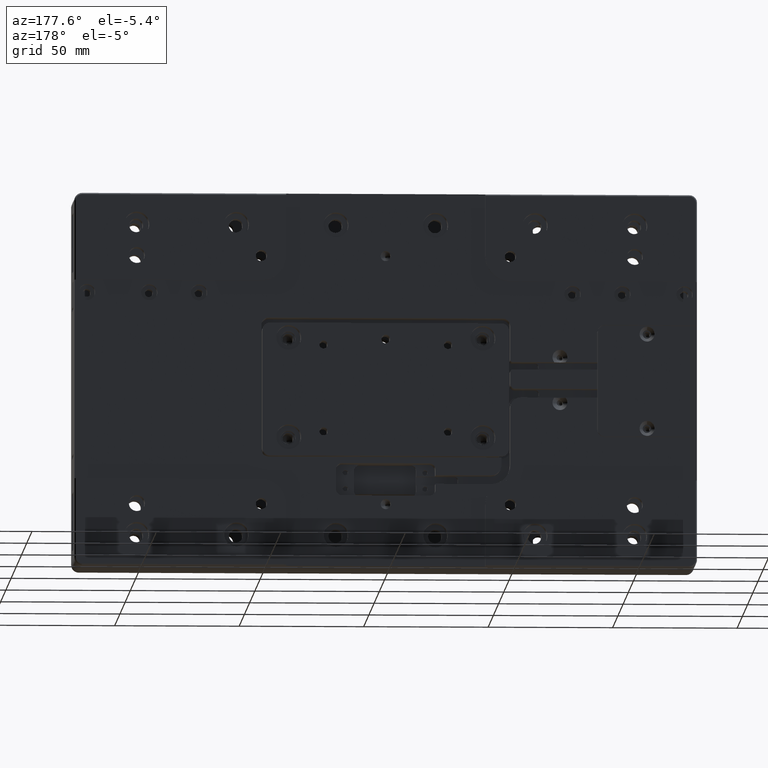
[diagram: clean part render]
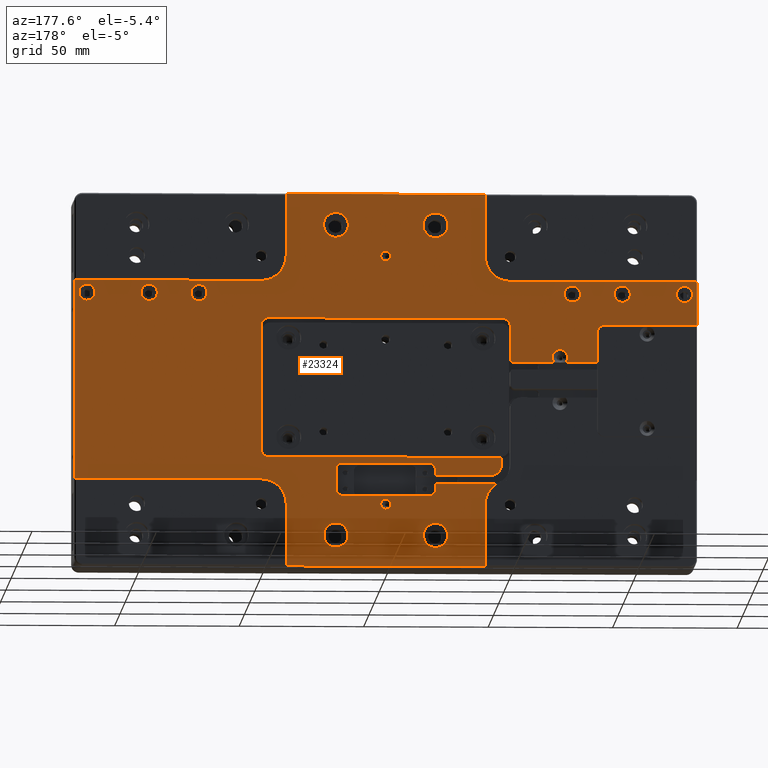
[diagram: same view with one face highlighted and labeled with its STEP entity id]
A machine part, auxiliary view. The second image highlights one B-rep face of the part: STEP entity #23324.
In plain terms, the highlighted planar face has unit normal (0, 1, 0).
Its self-contained STEP definition (entity closure, byte-faithful):
#62 = CARTESIAN_POINT ( 'NONE',  ( -125.0000000000000000, 11.50000000000000178, 22.50000000000000355 ) ) ;
#88 = CARTESIAN_POINT ( 'NONE',  ( 20.00000000000000000, 11.50000000000000000, -62.50000000000000000 ) ) ;
#166 = ORIENTED_EDGE ( 'NONE', *, *, #24335, .T. ) ;
#243 = DIRECTION ( 'NONE',  ( 0.000000000000000000, -0.000000000000000000, 1.000000000000000000 ) ) ;
#361 = VECTOR ( 'NONE', #34828, 1000.000000000000000 ) ;
#375 = VERTEX_POINT ( 'NONE', #7608 ) ;
#465 = ORIENTED_EDGE ( 'NONE', *, *, #6195, .T. ) ;
#473 = CARTESIAN_POINT ( 'NONE',  ( -17.50000000000000000, 11.50000000000000000, -46.50000000000000000 ) ) ;
#499 = CARTESIAN_POINT ( 'NONE',  ( 40.00000000000000000, 11.50000000000000000, 0.000000000000000000 ) ) ;
#684 = VECTOR ( 'NONE', #18749, 1000.000000000000000 ) ;
#731 = EDGE_LOOP ( 'NONE', ( #19443 ) ) ;
#919 = LINE ( 'NONE', #11798, #27098 ) ;
#946 = CARTESIAN_POINT ( 'NONE',  ( -95.00000000000000000, 11.50000000000000000, 35.00000000000000000 ) ) ;
#1009 = CARTESIAN_POINT ( 'NONE',  ( -88.00000000000000000, 11.50000000000000000, 22.50000000000000000 ) ) ;
#1016 = EDGE_CURVE ( 'NONE', #14650, #34304, #34479, .T. ) ;
#1017 = CARTESIAN_POINT ( 'NONE',  ( 0.000000000000000000, 11.50000000000000000, 25.00000000000000000 ) ) ;
#1098 = VERTEX_POINT ( 'NONE', #32691 ) ;
#1144 = EDGE_CURVE ( 'NONE', #3523, #3523, #6654, .T. ) ;
#1177 = DIRECTION ( 'NONE',  ( -0.000000000000000000, 0.000000000000000000, -1.000000000000000000 ) ) ;
#1387 = EDGE_CURVE ( 'NONE', #14396, #14396, #17477, .T. ) ;
#1462 = CARTESIAN_POINT ( 'NONE',  ( 40.00000000000000000, 11.50000000000000355, 50.00000000000000000 ) ) ;
#1493 = ORIENTED_EDGE ( 'NONE', *, *, #28859, .T. ) ;
#1514 = ORIENTED_EDGE ( 'NONE', *, *, #2591, .T. ) ;
#1524 = DIRECTION ( 'NONE',  ( -1.000000000000000000, -0.000000000000000000, 0.000000000000000000 ) ) ;
#1598 = DIRECTION ( 'NONE',  ( 0.000000000000000000, 0.000000000000000000, 1.000000000000000000 ) ) ;
#1850 = CIRCLE ( 'NONE', #29829, 2.000000000000001776 ) ;
#1916 = EDGE_CURVE ( 'NONE', #10281, #20406, #20385, .T. ) ;
#1942 = FACE_BOUND ( 'NONE', #26827, .T. ) ;
#2122 = FACE_BOUND ( 'NONE', #23846, .T. ) ;
#2141 = ORIENTED_EDGE ( 'NONE', *, *, #23450, .T. ) ;
#2197 = EDGE_CURVE ( 'NONE', #17684, #7976, #30004, .T. ) ;
#2241 = AXIS2_PLACEMENT_3D ( 'NONE', #34209, #4018, #6697 ) ;
#2380 = EDGE_CURVE ( 'NONE', #5679, #5679, #21556, .T. ) ;
#2591 = EDGE_CURVE ( 'NONE', #6183, #27718, #9568, .T. ) ;
#2665 = VERTEX_POINT ( 'NONE', #11712 ) ;
#2691 = ORIENTED_EDGE ( 'NONE', *, *, #2804, .T. ) ;
#2715 = CARTESIAN_POINT ( 'NONE',  ( -42.25000000000000000, 11.50000000000000000, -41.75000000000000000 ) ) ;
#2717 = ORIENTED_EDGE ( 'NONE', *, *, #32950, .T. ) ;
#2783 = DIRECTION ( 'NONE',  ( 0.000000000000000000, -0.000000000000000000, 1.000000000000000000 ) ) ;
#2804 = EDGE_CURVE ( 'NONE', #3106, #14650, #12225, .T. ) ;
#2805 = DIRECTION ( 'NONE',  ( -0.000000000000000000, -1.000000000000000000, -0.000000000000000000 ) ) ;
#2891 = CARTESIAN_POINT ( 'NONE',  ( 0.000000000000000000, 11.50000000000000000, -41.75000000000000000 ) ) ;
#2898 = DIRECTION ( 'NONE',  ( -0.000000000000000000, -1.000000000000000000, -0.000000000000000000 ) ) ;
#2914 = EDGE_CURVE ( 'NONE', #11220, #11220, #18719, .T. ) ;
#3010 = VECTOR ( 'NONE', #21527, 1000.000000000000000 ) ;
#3085 = CIRCLE ( 'NONE', #26465, 5.000000000000004441 ) ;
#3106 = VERTEX_POINT ( 'NONE', #1009 ) ;
#3236 = DIRECTION ( 'NONE',  ( 1.000000000000000000, 0.000000000000000000, -0.000000000000000000 ) ) ;
#3370 = ORIENTED_EDGE ( 'NONE', *, *, #1916, .T. ) ;
#3503 = CARTESIAN_POINT ( 'NONE',  ( 0.000000000000000000, 11.50000000000000000, -40.00000000000000000 ) ) ;
#3523 = VERTEX_POINT ( 'NONE', #8891 ) ;
#3540 = ORIENTED_EDGE ( 'NONE', *, *, #23436, .T. ) ;
#3743 = VERTEX_POINT ( 'NONE', #34635 ) ;
#3753 = AXIS2_PLACEMENT_3D ( 'NONE', #16243, #19277, #27153 ) ;
#3772 = CARTESIAN_POINT ( 'NONE',  ( -42.25000000000000000, 11.50000000000000000, -34.00000000000000000 ) ) ;
#3806 = AXIS2_PLACEMENT_3D ( 'NONE', #18713, #20681, #1598 ) ;
#3986 = ORIENTED_EDGE ( 'NONE', *, *, #30803, .T. ) ;
#4018 = DIRECTION ( 'NONE',  ( -0.000000000000000000, -1.000000000000000000, -0.000000000000000000 ) ) ;
#4095 = ORIENTED_EDGE ( 'NONE', *, *, #7170, .T. ) ;
#4153 = VERTEX_POINT ( 'NONE', #17699 ) ;
#4155 = ORIENTED_EDGE ( 'NONE', *, *, #14273, .T. ) ;
#4544 = ORIENTED_EDGE ( 'NONE', *, *, #25988, .T. ) ;
#4614 = FACE_BOUND ( 'NONE', #11718, .T. ) ;
#4719 = CARTESIAN_POINT ( 'NONE',  ( -46.50000000000000711, 11.50000000000000178, -31.00000000000000000 ) ) ;
#4818 = CARTESIAN_POINT ( 'NONE',  ( 125.0000000000000000, 11.50000000000000000, 0.000000000000000000 ) ) ;
#4852 = CARTESIAN_POINT ( 'NONE',  ( 40.00000000000000000, 11.50000000064749983, 75.00000000000000000 ) ) ;
#5074 = ORIENTED_EDGE ( 'NONE', *, *, #17064, .T. ) ;
#5190 = VERTEX_POINT ( 'NONE', #6333 ) ;
#5276 = DIRECTION ( 'NONE',  ( 0.000000000000000000, 0.000000000000000000, 1.000000000000000000 ) ) ;
#5340 = AXIS2_PLACEMENT_3D ( 'NONE', #14276, #5898, #22324 ) ;
#5485 = DIRECTION ( 'NONE',  ( 0.000000000000000000, 0.000000000000000000, 1.000000000000000000 ) ) ;
#5549 = CARTESIAN_POINT ( 'NONE',  ( 17.50000000000000000, 11.50000000000000000, -36.00000000000000711 ) ) ;
#5651 = CARTESIAN_POINT ( 'NONE',  ( -45.63458048957390645, 11.50000000000000178, -40.98752101068876641 ) ) ;
#5679 = VERTEX_POINT ( 'NONE', #27306 ) ;
#5898 = DIRECTION ( 'NONE',  ( -0.000000000000000000, -1.000000000000000000, -0.000000000000000000 ) ) ;
#5903 = CIRCLE ( 'NONE', #5340, 10.00000000000000178 ) ;
#5914 = CARTESIAN_POINT ( 'NONE',  ( -20.00000000000000000, 11.50000000000000000, -44.00000000000000000 ) ) ;
#5962 = CARTESIAN_POINT ( 'NONE',  ( -40.00000000000000000, 11.50000000000000000, 0.000000000000000000 ) ) ;
#6054 = CARTESIAN_POINT ( 'NONE',  ( -120.0000000000000000, 11.50000000000000000, 38.25000000000000711 ) ) ;
#6106 = EDGE_CURVE ( 'NONE', #3743, #17155, #24007, .T. ) ;
#6183 = VERTEX_POINT ( 'NONE', #14990 ) ;
#6191 = EDGE_CURVE ( 'NONE', #12506, #34908, #14331, .T. ) ;
#6195 = EDGE_CURVE ( 'NONE', #16371, #17445, #20701, .T. ) ;
#6217 = CARTESIAN_POINT ( 'NONE',  ( 0.000000000000000000, 11.50000000000000000, -48.00000000000000000 ) ) ;
#6272 = EDGE_CURVE ( 'NONE', #30962, #10281, #16717, .T. ) ;
#6333 = CARTESIAN_POINT ( 'NONE',  ( 50.00000000000000000, 11.50000000000000000, -28.00000000000000355 ) ) ;
#6377 = VERTEX_POINT ( 'NONE', #6217 ) ;
#6452 = VERTEX_POINT ( 'NONE', #31730 ) ;
#6465 = VECTOR ( 'NONE', #10154, 1000.000000000000000 ) ;
#6489 = VECTOR ( 'NONE', #6652, 1000.000000000000000 ) ;
#6513 = AXIS2_PLACEMENT_3D ( 'NONE', #946, #2898, #13776 ) ;
#6652 = DIRECTION ( 'NONE',  ( 0.000000000000000000, -0.000000000000000000, 1.000000000000000000 ) ) ;
#6654 = CIRCLE ( 'NONE', #34618, 4.874999999999997335 ) ;
#6697 = DIRECTION ( 'NONE',  ( 0.000000000000000000, 0.000000000000000000, 1.000000000000000000 ) ) ;
#6748 = ORIENTED_EDGE ( 'NONE', *, *, #8810, .T. ) ;
#6858 = EDGE_CURVE ( 'NONE', #2665, #27435, #12508, .T. ) ;
#6955 = LINE ( 'NONE', #4818, #7125 ) ;
#7097 = DIRECTION ( 'NONE',  ( -0.000000000000000000, 0.000000000000000000, -1.000000000000000000 ) ) ;
#7125 = VECTOR ( 'NONE', #13176, 1000.000000000000000 ) ;
#7170 = EDGE_CURVE ( 'NONE', #7268, #7268, #26939, .T. ) ;
#7177 = ORIENTED_EDGE ( 'NONE', *, *, #2380, .T. ) ;
#7178 = CARTESIAN_POINT ( 'NONE',  ( -20.00000000000000000, 11.50000000000000000, 62.50000000000000000 ) ) ;
#7261 = DIRECTION ( 'NONE',  ( -0.000000000000000000, -1.000000000000000000, -0.000000000000000000 ) ) ;
#7268 = VERTEX_POINT ( 'NONE', #7792 ) ;
#7304 = EDGE_LOOP ( 'NONE', ( #29040 ) ) ;
#7321 = VERTEX_POINT ( 'NONE', #31611 ) ;
#7468 = FACE_BOUND ( 'NONE', #16033, .T. ) ;
#7538 = AXIS2_PLACEMENT_3D ( 'NONE', #29874, #32730, #34730 ) ;
#7588 = DIRECTION ( 'NONE',  ( -0.000000000000000000, -1.000000000000000000, -0.000000000000000000 ) ) ;
#7608 = CARTESIAN_POINT ( 'NONE',  ( -20.00000000000000000, 11.50000000000000178, -38.25000000000000000 ) ) ;
#7652 = CARTESIAN_POINT ( 'NONE',  ( 0.000000000000000000, 11.50000000000000000, 0.000000000000000000 ) ) ;
#7676 = AXIS2_PLACEMENT_3D ( 'NONE', #9620, #18541, #18353 ) ;
#7708 = CARTESIAN_POINT ( 'NONE',  ( 0.000000000000000000, 11.50000000000000000, 75.00000000000000000 ) ) ;
#7792 = CARTESIAN_POINT ( 'NONE',  ( 120.0000000000000000, 11.50000000000000000, 38.25000000000000711 ) ) ;
#7858 = VERTEX_POINT ( 'NONE', #30280 ) ;
#7882 = VERTEX_POINT ( 'NONE', #30039 ) ;
#7976 = VERTEX_POINT ( 'NONE', #16675 ) ;
#8118 = CIRCLE ( 'NONE', #7538, 10.00000000000000178 ) ;
#8320 = CARTESIAN_POINT ( 'NONE',  ( -46.50000000000000000, 11.50000000000000000, 0.000000000000000000 ) ) ;
#8421 = CARTESIAN_POINT ( 'NONE',  ( 50.00000000000000000, 11.50000000000000178, 40.00000000000000000 ) ) ;
#8521 = EDGE_CURVE ( 'NONE', #28284, #28284, #3085, .T. ) ;
#8616 = AXIS2_PLACEMENT_3D ( 'NONE', #3772, #8766, #19839 ) ;
#8720 = EDGE_CURVE ( 'NONE', #18123, #24771, #30509, .T. ) ;
#8766 = DIRECTION ( 'NONE',  ( 0.000000000000000000, 1.000000000000000000, 0.000000000000000000 ) ) ;
#8778 = ORIENTED_EDGE ( 'NONE', *, *, #20932, .T. ) ;
#8810 = EDGE_CURVE ( 'NONE', #26700, #20858, #20768, .T. ) ;
#8861 = VECTOR ( 'NONE', #22896, 1000.000000000000000 ) ;
#8891 = CARTESIAN_POINT ( 'NONE',  ( -20.00000000000000000, 11.50000000000000000, -57.62500000000000000 ) ) ;
#8986 = LINE ( 'NONE', #5962, #8861 ) ;
#9039 = DIRECTION ( 'NONE',  ( -0.000000000000000000, 0.000000000000000000, -1.000000000000000000 ) ) ;
#9040 = AXIS2_PLACEMENT_3D ( 'NONE', #29610, #2805, #5485 ) ;
#9201 = DIRECTION ( 'NONE',  ( -1.000000000000000000, -0.000000000000000000, 0.000000000000000000 ) ) ;
#9347 = CARTESIAN_POINT ( 'NONE',  ( -85.00000000000000000, 11.50000000000000178, 7.500000000000000000 ) ) ;
#9359 = EDGE_CURVE ( 'NONE', #5190, #6183, #13444, .T. ) ;
#9383 = CARTESIAN_POINT ( 'NONE',  ( -20.00000000000000000, 11.50000000000000000, 0.000000000000000000 ) ) ;
#9513 = EDGE_LOOP ( 'NONE', ( #2141 ) ) ;
#9530 = EDGE_CURVE ( 'NONE', #27435, #6452, #22362, .T. ) ;
#9568 = CIRCLE ( 'NONE', #30713, 2.999999999999999112 ) ;
#9620 = CARTESIAN_POINT ( 'NONE',  ( -42.25000000000000000, 11.50000000000000000, -34.00000000000000000 ) ) ;
#9717 = CARTESIAN_POINT ( 'NONE',  ( 0.000000000000000000, 11.50000000000000000, 22.50000000000000000 ) ) ;
#9757 = DIRECTION ( 'NONE',  ( 0.000000000000000000, 0.000000000000000000, 1.000000000000000000 ) ) ;
#9759 = LINE ( 'NONE', #31569, #26256 ) ;
#9795 = CARTESIAN_POINT ( 'NONE',  ( -125.0000000000000000, 11.50000000000000000, 0.000000000000000000 ) ) ;
#9939 = CARTESIAN_POINT ( 'NONE',  ( 75.00000000000000000, 11.50000000000000000, 38.25000000000000711 ) ) ;
#10142 = FACE_OUTER_BOUND ( 'NONE', #19527, .T. ) ;
#10154 = DIRECTION ( 'NONE',  ( 1.000000000000000000, 0.000000000000000000, -0.000000000000000000 ) ) ;
#10254 = CARTESIAN_POINT ( 'NONE',  ( -88.00000000000000000, 11.50000000000000000, 19.50000000000000000 ) ) ;
#10281 = VERTEX_POINT ( 'NONE', #12097 ) ;
#10285 = CARTESIAN_POINT ( 'NONE',  ( 47.00000000000000000, 11.50000000000000000, 22.00000000000000000 ) ) ;
#10286 = CARTESIAN_POINT ( 'NONE',  ( 125.0000000000000000, 11.49999999999999289, -40.00000000000000000 ) ) ;
#10342 = CARTESIAN_POINT ( 'NONE',  ( 0.000000000000000000, 11.50000000000000000, 7.500000000000000000 ) ) ;
#10411 = CARTESIAN_POINT ( 'NONE',  ( 0.000000000000000000, 11.50000000000000000, -33.50000000000000000 ) ) ;
#10611 = CARTESIAN_POINT ( 'NONE',  ( -40.00000000000000000, 11.50000000064749983, -75.00000000000000000 ) ) ;
#10628 = CARTESIAN_POINT ( 'NONE',  ( 0.000000000000000000, 11.50000000000000000, 40.00000000000000000 ) ) ;
#10842 = DIRECTION ( 'NONE',  ( -1.000000000000000000, -0.000000000000000000, 0.000000000000000000 ) ) ;
#10885 = EDGE_CURVE ( 'NONE', #16521, #16521, #14419, .T. ) ;
#10915 = VECTOR ( 'NONE', #25787, 1000.000000000000000 ) ;
#10973 = AXIS2_PLACEMENT_3D ( 'NONE', #13188, #18225, #18910 ) ;
#10982 = CARTESIAN_POINT ( 'NONE',  ( -20.00000000000000000, 11.50000000000000000, 67.50000000000000000 ) ) ;
#11076 = DIRECTION ( 'NONE',  ( -0.000000000000000000, -1.000000000000000000, -0.000000000000000000 ) ) ;
#11139 = ORIENTED_EDGE ( 'NONE', *, *, #20623, .T. ) ;
#11220 = VERTEX_POINT ( 'NONE', #33030 ) ;
#11480 = ORIENTED_EDGE ( 'NONE', *, *, #6272, .T. ) ;
#11490 = ORIENTED_EDGE ( 'NONE', *, *, #2914, .T. ) ;
#11659 = CARTESIAN_POINT ( 'NONE',  ( -17.50000000000000000, 11.50000000000000000, -36.00000000000000711 ) ) ;
#11712 = CARTESIAN_POINT ( 'NONE',  ( -72.36854385646635990, 11.50000000000000000, 7.500000000001130651 ) ) ;
#11718 = EDGE_LOOP ( 'NONE', ( #4095 ) ) ;
#11762 = ORIENTED_EDGE ( 'NONE', *, *, #21296, .T. ) ;
#11798 = CARTESIAN_POINT ( 'NONE',  ( 0.000000000000000000, 11.50000000000000000, -31.00000000000000000 ) ) ;
#12021 = LINE ( 'NONE', #31170, #33547 ) ;
#12091 = EDGE_CURVE ( 'NONE', #34304, #18123, #35137, .T. ) ;
#12097 = CARTESIAN_POINT ( 'NONE',  ( 50.00000000000000000, 11.50000000000000355, -40.00000000000000000 ) ) ;
#12163 = VECTOR ( 'NONE', #9201, 1000.000000000000000 ) ;
#12225 = LINE ( 'NONE', #9717, #20428 ) ;
#12316 = ORIENTED_EDGE ( 'NONE', *, *, #17999, .T. ) ;
#12318 = DIRECTION ( 'NONE',  ( 0.000000000000000000, -1.000000000000000000, 0.000000000000000000 ) ) ;
#12331 = CIRCLE ( 'NONE', #12911, 2.999999999999999112 ) ;
#12475 = ORIENTED_EDGE ( 'NONE', *, *, #13858, .T. ) ;
#12506 = VERTEX_POINT ( 'NONE', #30071 ) ;
#12508 = LINE ( 'NONE', #10342, #684 ) ;
#12628 = FACE_BOUND ( 'NONE', #34272, .T. ) ;
#12783 = AXIS2_PLACEMENT_3D ( 'NONE', #33717, #20298, #31378 ) ;
#12821 = FACE_BOUND ( 'NONE', #28813, .T. ) ;
#12829 = EDGE_CURVE ( 'NONE', #16935, #21207, #20159, .T. ) ;
#12904 = CARTESIAN_POINT ( 'NONE',  ( 75.00000000000000000, 11.50000000000000000, 35.00000000000000000 ) ) ;
#12911 = AXIS2_PLACEMENT_3D ( 'NONE', #10254, #7588, #18480 ) ;
#12915 = DIRECTION ( 'NONE',  ( 0.000000000000000000, 0.000000000000000000, 1.000000000000000000 ) ) ;
#12994 = DIRECTION ( 'NONE',  ( 0.000000000000000000, 0.000000000000000000, 1.000000000000000000 ) ) ;
#12998 = FACE_BOUND ( 'NONE', #32050, .T. ) ;
#13176 = DIRECTION ( 'NONE',  ( -0.000000000000000000, 0.000000000000000000, -1.000000000000000000 ) ) ;
#13188 = CARTESIAN_POINT ( 'NONE',  ( 47.00000000000000000, 11.50000000000000000, -28.00000000000000000 ) ) ;
#13197 = ORIENTED_EDGE ( 'NONE', *, *, #8720, .T. ) ;
#13296 = EDGE_CURVE ( 'NONE', #12506, #31113, #17587, .T. ) ;
#13297 = CARTESIAN_POINT ( 'NONE',  ( 0.000000000000000000, 11.50000000000000000, 50.00000000000000000 ) ) ;
#13317 = DIRECTION ( 'NONE',  ( -0.000000000000000000, -1.000000000000000000, -0.000000000000000000 ) ) ;
#13444 = LINE ( 'NONE', #16474, #17886 ) ;
#13480 = DIRECTION ( 'NONE',  ( 0.000000000000000000, 0.000000000000000000, 1.000000000000000000 ) ) ;
#13529 = LINE ( 'NONE', #35347, #17889 ) ;
#13546 = ORIENTED_EDGE ( 'NONE', *, *, #19842, .T. ) ;
#13601 = EDGE_CURVE ( 'NONE', #33733, #16935, #25059, .T. ) ;
#13602 = AXIS2_PLACEMENT_3D ( 'NONE', #18162, #29759, #5276 ) ;
#13776 = DIRECTION ( 'NONE',  ( 0.000000000000000000, 0.000000000000000000, 1.000000000000000000 ) ) ;
#13788 = CARTESIAN_POINT ( 'NONE',  ( 20.00000000000000000, 11.50000000000000000, 0.000000000000000000 ) ) ;
#13858 = EDGE_CURVE ( 'NONE', #34875, #28057, #21396, .T. ) ;
#13924 = AXIS2_PLACEMENT_3D ( 'NONE', #21789, #32704, #24650 ) ;
#13985 = DIRECTION ( 'NONE',  ( -0.000000000000000000, -1.000000000000000000, -0.000000000000000000 ) ) ;
#14148 = CARTESIAN_POINT ( 'NONE',  ( -85.00000000000000000, 11.50000000000000000, 0.000000000000000000 ) ) ;
#14273 = EDGE_CURVE ( 'NONE', #7882, #7882, #1850, .T. ) ;
#14276 = CARTESIAN_POINT ( 'NONE',  ( -50.00000000000000000, 11.50000000000000355, -50.00000000000000000 ) ) ;
#14331 = CIRCLE ( 'NONE', #29199, 1.000000000000000000 ) ;
#14396 = VERTEX_POINT ( 'NONE', #30699 ) ;
#14419 = CIRCLE ( 'NONE', #28700, 4.874999999999997335 ) ;
#14650 = VERTEX_POINT ( 'NONE', #62 ) ;
#14936 = CARTESIAN_POINT ( 'NONE',  ( 20.00000000000000000, 11.50000000000000000, 62.50000000000000000 ) ) ;
#14953 = EDGE_CURVE ( 'NONE', #31146, #7858, #32125, .T. ) ;
#14990 = CARTESIAN_POINT ( 'NONE',  ( 50.00000000000000000, 11.50000000000000000, 22.00000000000000000 ) ) ;
#15084 = VECTOR ( 'NONE', #17078, 1000.000000000000000 ) ;
#15334 = CARTESIAN_POINT ( 'NONE',  ( 0.000000000000000000, 11.50000000000000000, -46.50000000000000000 ) ) ;
#15524 = CARTESIAN_POINT ( 'NONE',  ( 40.00000000000000000, 11.50000000000000178, -50.00000000000000000 ) ) ;
#15537 = CARTESIAN_POINT ( 'NONE',  ( 20.00000000000000000, 11.50000000000000000, -44.00000000000000000 ) ) ;
#15660 = VECTOR ( 'NONE', #18591, 1000.000000000000000 ) ;
#15910 = CIRCLE ( 'NONE', #2241, 2.500000000000002220 ) ;
#16025 = EDGE_CURVE ( 'NONE', #20850, #16353, #17928, .T. ) ;
#16033 = EDGE_LOOP ( 'NONE', ( #29783 ) ) ;
#16071 = LINE ( 'NONE', #7708, #15660 ) ;
#16215 = EDGE_CURVE ( 'NONE', #17445, #31146, #24207, .T. ) ;
#16235 = CIRCLE ( 'NONE', #7676, 7.750000000000000000 ) ;
#16243 = CARTESIAN_POINT ( 'NONE',  ( -120.0000000000000000, 11.50000000000000000, 35.00000000000000000 ) ) ;
#16353 = VERTEX_POINT ( 'NONE', #22520 ) ;
#16371 = VERTEX_POINT ( 'NONE', #30751 ) ;
#16409 = EDGE_CURVE ( 'NONE', #31358, #29863, #919, .T. ) ;
#16459 = ORIENTED_EDGE ( 'NONE', *, *, #34065, .T. ) ;
#16474 = CARTESIAN_POINT ( 'NONE',  ( 50.00000000000000000, 11.50000000000000000, 0.000000000000000000 ) ) ;
#16501 = ORIENTED_EDGE ( 'NONE', *, *, #9530, .T. ) ;
#16521 = VERTEX_POINT ( 'NONE', #24746 ) ;
#16544 = CARTESIAN_POINT ( 'NONE',  ( -50.00000000000000000, 11.50000000000000000, 22.00000000000000000 ) ) ;
#16593 = DIRECTION ( 'NONE',  ( 0.000000000000000000, 0.000000000000000000, 1.000000000000000000 ) ) ;
#16597 = ORIENTED_EDGE ( 'NONE', *, *, #9359, .T. ) ;
#16621 = VERTEX_POINT ( 'NONE', #5651 ) ;
#16675 = CARTESIAN_POINT ( 'NONE',  ( 125.0000000000000000, 11.50000000000000000, 40.00000000000000000 ) ) ;
#16717 = LINE ( 'NONE', #3503, #32042 ) ;
#16935 = VERTEX_POINT ( 'NONE', #21502 ) ;
#16952 = VERTEX_POINT ( 'NONE', #32952 ) ;
#17064 = EDGE_CURVE ( 'NONE', #32614, #16952, #8986, .T. ) ;
#17078 = DIRECTION ( 'NONE',  ( -1.000000000000000000, -0.000000000000000000, 0.000000000000000000 ) ) ;
#17155 = VERTEX_POINT ( 'NONE', #30790 ) ;
#17217 = CARTESIAN_POINT ( 'NONE',  ( 47.00000000000000000, 11.50000000000000000, -31.00000000000000000 ) ) ;
#17356 = AXIS2_PLACEMENT_3D ( 'NONE', #20637, #7261, #31739 ) ;
#17445 = VERTEX_POINT ( 'NONE', #5914 ) ;
#17477 = CIRCLE ( 'NONE', #3806, 3.250000000000002665 ) ;
#17484 = VECTOR ( 'NONE', #9039, 1000.000000000000000 ) ;
#17587 = LINE ( 'NONE', #23293, #10915 ) ;
#17611 = ORIENTED_EDGE ( 'NONE', *, *, #1016, .T. ) ;
#17684 = VERTEX_POINT ( 'NONE', #8421 ) ;
#17699 = CARTESIAN_POINT ( 'NONE',  ( -40.00000000000000711, 11.50000000000000000, 75.00000000000000000 ) ) ;
#17795 = VERTEX_POINT ( 'NONE', #9939 ) ;
#17800 = VECTOR ( 'NONE', #32305, 1000.000000000000000 ) ;
#17886 = VECTOR ( 'NONE', #27215, 1000.000000000000000 ) ;
#17889 = VECTOR ( 'NONE', #10842, 1000.000000000000000 ) ;
#17928 = CIRCLE ( 'NONE', #31641, 2.500000000000002220 ) ;
#17995 = CIRCLE ( 'NONE', #3753, 3.250000000000002665 ) ;
#17999 = EDGE_CURVE ( 'NONE', #7976, #30962, #6955, .T. ) ;
#18013 = DIRECTION ( 'NONE',  ( -0.000000000000000000, -1.000000000000000000, -0.000000000000000000 ) ) ;
#18065 = DIRECTION ( 'NONE',  ( -0.000000000000000000, -1.000000000000000000, -0.000000000000000000 ) ) ;
#18107 = CARTESIAN_POINT ( 'NONE',  ( -125.0000000000000000, 11.50000000000000000, 40.00000000000000000 ) ) ;
#18123 = VERTEX_POINT ( 'NONE', #33044 ) ;
#18128 = LINE ( 'NONE', #10411, #23974 ) ;
#18162 = CARTESIAN_POINT ( 'NONE',  ( -70.00000000000000000, 11.50000000000000000, 9.500000000000000000 ) ) ;
#18225 = DIRECTION ( 'NONE',  ( -0.000000000000000000, -1.000000000000000000, -0.000000000000000000 ) ) ;
#18261 = DIRECTION ( 'NONE',  ( 0.000000000000000000, 0.000000000000000000, 1.000000000000000000 ) ) ;
#18353 = DIRECTION ( 'NONE',  ( 0.000000000000000000, 0.000000000000000000, 1.000000000000000000 ) ) ;
#18444 = CIRCLE ( 'NONE', #23609, 2.000000000000001776 ) ;
#18480 = DIRECTION ( 'NONE',  ( 0.000000000000000000, 0.000000000000000000, 1.000000000000000000 ) ) ;
#18512 = DIRECTION ( 'NONE',  ( 0.000000000000000000, 0.000000000000000000, 1.000000000000000000 ) ) ;
#18541 = DIRECTION ( 'NONE',  ( -0.000000000000000000, -1.000000000000000000, -0.000000000000000000 ) ) ;
#18591 = DIRECTION ( 'NONE',  ( 1.000000000000000000, 0.000000000000000000, -0.000000000000000000 ) ) ;
#18713 = CARTESIAN_POINT ( 'NONE',  ( 95.00000000000000000, 11.50000000000000000, 35.00000000000000000 ) ) ;
#18719 = CIRCLE ( 'NONE', #9040, 3.250000000000002665 ) ;
#18724 = ORIENTED_EDGE ( 'NONE', *, *, #6191, .F. ) ;
#18749 = DIRECTION ( 'NONE',  ( -1.000000000000000000, -0.000000000000000000, 0.000000000000000000 ) ) ;
#18771 = ORIENTED_EDGE ( 'NONE', *, *, #12829, .T. ) ;
#18887 = VERTEX_POINT ( 'NONE', #2715 ) ;
#18910 = DIRECTION ( 'NONE',  ( 0.000000000000000000, 0.000000000000000000, 1.000000000000000000 ) ) ;
#19168 = DIRECTION ( 'NONE',  ( 0.000000000000000000, 0.000000000000000000, 1.000000000000000000 ) ) ;
#19240 = AXIS2_PLACEMENT_3D ( 'NONE', #22557, #33478, #19168 ) ;
#19277 = DIRECTION ( 'NONE',  ( -0.000000000000000000, -1.000000000000000000, -0.000000000000000000 ) ) ;
#19443 = ORIENTED_EDGE ( 'NONE', *, *, #33372, .T. ) ;
#19462 = VECTOR ( 'NONE', #1177, 1000.000000000000000 ) ;
#19527 = EDGE_LOOP ( 'NONE', ( #34843, #31995, #23434, #16501, #4544, #2691, #17611, #20489, #13197, #1493, #25985, #12475, #22881, #31635, #12316, #11480, #3370, #11139, #3540, #5074, #2717, #166, #11762, #465, #30917, #34259, #32009, #30144, #18771, #22537, #26142, #13546, #33789, #35105, #16459, #26184, #19690, #16597, #1514, #8778, #6748, #3986, #18724 ) ) ;
#19690 = ORIENTED_EDGE ( 'NONE', *, *, #26462, .T. ) ;
#19839 = DIRECTION ( 'NONE',  ( 0.000000000000000000, 0.000000000000000000, 1.000000000000000000 ) ) ;
#19842 = EDGE_CURVE ( 'NONE', #16353, #375, #25480, .T. ) ;
#20159 = CIRCLE ( 'NONE', #21875, 2.500000000000002220 ) ;
#20298 = DIRECTION ( 'NONE',  ( -0.000000000000000000, -1.000000000000000000, -0.000000000000000000 ) ) ;
#20385 = CIRCLE ( 'NONE', #19240, 10.00000000000000178 ) ;
#20406 = VERTEX_POINT ( 'NONE', #15524 ) ;
#20428 = VECTOR ( 'NONE', #1524, 1000.000000000000000 ) ;
#20489 = ORIENTED_EDGE ( 'NONE', *, *, #12091, .T. ) ;
#20529 = CARTESIAN_POINT ( 'NONE',  ( -51.00000000000000711, 11.50000000000000000, 8.500000000000000000 ) ) ;
#20623 = EDGE_CURVE ( 'NONE', #20406, #1098, #23893, .T. ) ;
#20637 = CARTESIAN_POINT ( 'NONE',  ( -47.00000000000000000, 11.50000000000000000, 22.00000000000000000 ) ) ;
#20681 = DIRECTION ( 'NONE',  ( -0.000000000000000000, -1.000000000000000000, -0.000000000000000000 ) ) ;
#20701 = LINE ( 'NONE', #30499, #19462 ) ;
#20768 = CIRCLE ( 'NONE', #17356, 2.999999999999999112 ) ;
#20850 = VERTEX_POINT ( 'NONE', #21914 ) ;
#20858 = VERTEX_POINT ( 'NONE', #16544 ) ;
#20932 = EDGE_CURVE ( 'NONE', #27718, #26700, #25484, .T. ) ;
#21041 = PLANE ( 'NONE',  #25874 ) ;
#21189 = CARTESIAN_POINT ( 'NONE',  ( 40.00000000000000000, 11.50000000000000000, 0.000000000000000000 ) ) ;
#21207 = VERTEX_POINT ( 'NONE', #22059 ) ;
#21296 = EDGE_CURVE ( 'NONE', #18887, #16371, #27907, .T. ) ;
#21315 = ORIENTED_EDGE ( 'NONE', *, *, #8521, .T. ) ;
#21396 = LINE ( 'NONE', #499, #17800 ) ;
#21502 = CARTESIAN_POINT ( 'NONE',  ( 20.00000000000000000, 11.50000000000000000, -36.00000000000000711 ) ) ;
#21527 = DIRECTION ( 'NONE',  ( 1.000000000000000000, 0.000000000000000000, -0.000000000000000000 ) ) ;
#21556 = CIRCLE ( 'NONE', #34123, 5.000000000000004441 ) ;
#21789 = CARTESIAN_POINT ( 'NONE',  ( -17.50000000000000000, 11.50000000000000000, -44.00000000000000000 ) ) ;
#21875 = AXIS2_PLACEMENT_3D ( 'NONE', #5549, #11076, #28226 ) ;
#21914 = CARTESIAN_POINT ( 'NONE',  ( -17.50000000000000000, 11.50000000000000000, -33.50000000000000000 ) ) ;
#22059 = CARTESIAN_POINT ( 'NONE',  ( 17.50000000000000000, 11.50000000000000000, -33.50000000000000000 ) ) ;
#22208 = DIRECTION ( 'NONE',  ( 0.000000000000000000, 0.000000000000000000, 1.000000000000000000 ) ) ;
#22324 = DIRECTION ( 'NONE',  ( -2.081668171172168119E-15, 0.000000000000000000, 1.000000000000000000 ) ) ;
#22362 = LINE ( 'NONE', #14148, #6489 ) ;
#22457 = EDGE_CURVE ( 'NONE', #28057, #17684, #8118, .T. ) ;
#22520 = CARTESIAN_POINT ( 'NONE',  ( -20.00000000000000000, 11.50000000000000000, -36.00000000000000711 ) ) ;
#22537 = ORIENTED_EDGE ( 'NONE', *, *, #31321, .T. ) ;
#22557 = CARTESIAN_POINT ( 'NONE',  ( 50.00000000000000000, 11.50000000000000355, -50.00000000000000000 ) ) ;
#22881 = ORIENTED_EDGE ( 'NONE', *, *, #22457, .T. ) ;
#22896 = DIRECTION ( 'NONE',  ( 0.000000000000000000, -0.000000000000000000, 1.000000000000000000 ) ) ;
#23284 = DIRECTION ( 'NONE',  ( 0.000000000000000000, -0.000000000000000000, 1.000000000000000000 ) ) ;
#23293 = CARTESIAN_POINT ( 'NONE',  ( 0.000000000000000000, 11.50000000000000000, 7.500000000000000000 ) ) ;
#23324 = ADVANCED_FACE ( 'NONE', ( #2122, #7468, #29622, #12628, #29099, #4614, #1942, #34651, #12998, #12821, #32114, #23732, #10142 ), #21041, .T. ) ;
#23357 = CARTESIAN_POINT ( 'NONE',  ( -47.00000000000000000, 11.50000000000000000, 25.00000000000000000 ) ) ;
#23434 = ORIENTED_EDGE ( 'NONE', *, *, #6858, .T. ) ;
#23436 = EDGE_CURVE ( 'NONE', #1098, #32614, #13529, .T. ) ;
#23450 = EDGE_CURVE ( 'NONE', #6377, #6377, #18444, .T. ) ;
#23609 = AXIS2_PLACEMENT_3D ( 'NONE', #34566, #26315, #12915 ) ;
#23732 = FACE_BOUND ( 'NONE', #26001, .T. ) ;
#23846 = EDGE_LOOP ( 'NONE', ( #11490 ) ) ;
#23893 = LINE ( 'NONE', #21189, #32256 ) ;
#23901 = DIRECTION ( 'NONE',  ( 0.000000000000000000, 1.000000000000000000, 0.000000000000000000 ) ) ;
#23974 = VECTOR ( 'NONE', #24003, 1000.000000000000000 ) ;
#23975 = DIRECTION ( 'NONE',  ( -0.000000000000000000, -1.000000000000000000, -0.000000000000000000 ) ) ;
#24003 = DIRECTION ( 'NONE',  ( -1.000000000000000000, -0.000000000000000000, 0.000000000000000000 ) ) ;
#24007 = CIRCLE ( 'NONE', #8616, 4.250000000000000000 ) ;
#24081 = CIRCLE ( 'NONE', #10973, 2.999999999999999112 ) ;
#24207 = CIRCLE ( 'NONE', #13924, 2.500000000000002220 ) ;
#24216 = DIRECTION ( 'NONE',  ( 0.000000000000000000, 0.000000000000000000, 1.000000000000000000 ) ) ;
#24335 = EDGE_CURVE ( 'NONE', #16621, #18887, #16235, .T. ) ;
#24472 = DIRECTION ( 'NONE',  ( -0.000000000000000000, -1.000000000000000000, -0.000000000000000000 ) ) ;
#24650 = DIRECTION ( 'NONE',  ( 0.000000000000000000, 0.000000000000000000, 1.000000000000000000 ) ) ;
#24746 = CARTESIAN_POINT ( 'NONE',  ( 20.00000000000000000, 11.50000000000000000, -57.62500000000000000 ) ) ;
#24771 = VERTEX_POINT ( 'NONE', #26359 ) ;
#24965 = DIRECTION ( 'NONE',  ( 0.000000000000000000, 0.000000000000000000, 1.000000000000000000 ) ) ;
#25059 = LINE ( 'NONE', #13788, #25766 ) ;
#25378 = EDGE_CURVE ( 'NONE', #33201, #33201, #17995, .T. ) ;
#25480 = LINE ( 'NONE', #9383, #17484 ) ;
#25484 = LINE ( 'NONE', #1017, #15084 ) ;
#25766 = VECTOR ( 'NONE', #243, 1000.000000000000000 ) ;
#25787 = DIRECTION ( 'NONE',  ( -1.000000000000000000, -0.000000000000000000, 0.000000000000000000 ) ) ;
#25874 = AXIS2_PLACEMENT_3D ( 'NONE', #7652, #23901, #31946 ) ;
#25985 = ORIENTED_EDGE ( 'NONE', *, *, #34984, .T. ) ;
#25988 = EDGE_CURVE ( 'NONE', #6452, #3106, #12331, .T. ) ;
#26001 = EDGE_LOOP ( 'NONE', ( #26877 ) ) ;
#26142 = ORIENTED_EDGE ( 'NONE', *, *, #16025, .T. ) ;
#26144 = CIRCLE ( 'NONE', #27261, 3.250000000000002665 ) ;
#26184 = ORIENTED_EDGE ( 'NONE', *, *, #16409, .T. ) ;
#26216 = EDGE_LOOP ( 'NONE', ( #34749 ) ) ;
#26256 = VECTOR ( 'NONE', #7097, 1000.000000000000000 ) ;
#26315 = DIRECTION ( 'NONE',  ( -0.000000000000000000, -1.000000000000000000, -0.000000000000000000 ) ) ;
#26359 = CARTESIAN_POINT ( 'NONE',  ( -40.00000000000000000, 11.50000000000000178, 50.00000000000000000 ) ) ;
#26462 = EDGE_CURVE ( 'NONE', #29863, #5190, #24081, .T. ) ;
#26465 = AXIS2_PLACEMENT_3D ( 'NONE', #7178, #18065, #24965 ) ;
#26700 = VERTEX_POINT ( 'NONE', #23357 ) ;
#26827 = EDGE_LOOP ( 'NONE', ( #4155 ) ) ;
#26877 = ORIENTED_EDGE ( 'NONE', *, *, #1144, .T. ) ;
#26939 = CIRCLE ( 'NONE', #28658, 3.250000000000002665 ) ;
#27098 = VECTOR ( 'NONE', #3236, 1000.000000000000000 ) ;
#27153 = DIRECTION ( 'NONE',  ( 0.000000000000000000, 0.000000000000000000, 1.000000000000000000 ) ) ;
#27215 = DIRECTION ( 'NONE',  ( 0.000000000000000000, -0.000000000000000000, 1.000000000000000000 ) ) ;
#27261 = AXIS2_PLACEMENT_3D ( 'NONE', #12904, #23975, #18261 ) ;
#27306 = CARTESIAN_POINT ( 'NONE',  ( 20.00000000000000000, 11.50000000000000000, 67.50000000000000000 ) ) ;
#27435 = VERTEX_POINT ( 'NONE', #9347 ) ;
#27505 = CARTESIAN_POINT ( 'NONE',  ( -20.00000000000000000, 11.50000000000000000, -62.50000000000000000 ) ) ;
#27632 = EDGE_CURVE ( 'NONE', #17795, #17795, #26144, .T. ) ;
#27718 = VERTEX_POINT ( 'NONE', #32020 ) ;
#27907 = LINE ( 'NONE', #2891, #30403 ) ;
#28057 = VERTEX_POINT ( 'NONE', #1462 ) ;
#28226 = DIRECTION ( 'NONE',  ( 0.000000000000000000, 0.000000000000000000, 1.000000000000000000 ) ) ;
#28284 = VERTEX_POINT ( 'NONE', #10982 ) ;
#28464 = CIRCLE ( 'NONE', #13602, 3.100000000000000533 ) ;
#28543 = DIRECTION ( 'NONE',  ( -0.000000000000000000, -1.000000000000000000, -0.000000000000000000 ) ) ;
#28658 = AXIS2_PLACEMENT_3D ( 'NONE', #29449, #18013, #12994 ) ;
#28700 = AXIS2_PLACEMENT_3D ( 'NONE', #88, #30643, #13480 ) ;
#28813 = EDGE_LOOP ( 'NONE', ( #7177 ) ) ;
#28859 = EDGE_CURVE ( 'NONE', #24771, #4153, #12021, .T. ) ;
#29040 = ORIENTED_EDGE ( 'NONE', *, *, #25378, .T. ) ;
#29099 = FACE_BOUND ( 'NONE', #7304, .T. ) ;
#29199 = AXIS2_PLACEMENT_3D ( 'NONE', #20529, #12318, #31440 ) ;
#29449 = CARTESIAN_POINT ( 'NONE',  ( 120.0000000000000000, 11.50000000000000000, 35.00000000000000000 ) ) ;
#29610 = CARTESIAN_POINT ( 'NONE',  ( -75.00000000000000000, 11.50000000000000000, 35.00000000000000000 ) ) ;
#29622 = FACE_BOUND ( 'NONE', #731, .T. ) ;
#29728 = EDGE_CURVE ( 'NONE', #31113, #2665, #28464, .T. ) ;
#29759 = DIRECTION ( 'NONE',  ( -0.000000000000000000, -1.000000000000000000, -0.000000000000000000 ) ) ;
#29783 = ORIENTED_EDGE ( 'NONE', *, *, #27632, .T. ) ;
#29829 = AXIS2_PLACEMENT_3D ( 'NONE', #13297, #35313, #24216 ) ;
#29845 = CARTESIAN_POINT ( 'NONE',  ( -50.00000000000000000, 11.50000000000000000, 8.500000000000000000 ) ) ;
#29863 = VERTEX_POINT ( 'NONE', #17217 ) ;
#29874 = CARTESIAN_POINT ( 'NONE',  ( 50.00000000000000000, 11.50000000000000355, 50.00000000000000000 ) ) ;
#29936 = LINE ( 'NONE', #8320, #30533 ) ;
#29937 = EDGE_CURVE ( 'NONE', #7858, #33733, #15910, .T. ) ;
#30004 = LINE ( 'NONE', #32319, #30095 ) ;
#30039 = CARTESIAN_POINT ( 'NONE',  ( 0.000000000000000000, 11.50000000000000000, 52.00000000000000711 ) ) ;
#30071 = CARTESIAN_POINT ( 'NONE',  ( -51.00000000000000711, 11.50000000000000000, 7.500000000000000000 ) ) ;
#30095 = VECTOR ( 'NONE', #35196, 1000.000000000000000 ) ;
#30133 = CARTESIAN_POINT ( 'NONE',  ( -67.63145614353365431, 11.50000000000000000, 7.500000000001133316 ) ) ;
#30144 = ORIENTED_EDGE ( 'NONE', *, *, #13601, .T. ) ;
#30280 = CARTESIAN_POINT ( 'NONE',  ( 17.50000000000000000, 11.50000000000000000, -46.50000000000000000 ) ) ;
#30403 = VECTOR ( 'NONE', #32726, 1000.000000000000000 ) ;
#30499 = CARTESIAN_POINT ( 'NONE',  ( -20.00000000000000000, 11.50000000000000000, 0.000000000000000000 ) ) ;
#30509 = CIRCLE ( 'NONE', #12783, 10.00000000000000178 ) ;
#30533 = VECTOR ( 'NONE', #2783, 1000.000000000000000 ) ;
#30643 = DIRECTION ( 'NONE',  ( -0.000000000000000000, -1.000000000000000000, -0.000000000000000000 ) ) ;
#30699 = CARTESIAN_POINT ( 'NONE',  ( 95.00000000000000000, 11.50000000000000000, 38.25000000000000711 ) ) ;
#30713 = AXIS2_PLACEMENT_3D ( 'NONE', #10285, #13317, #18512 ) ;
#30751 = CARTESIAN_POINT ( 'NONE',  ( -20.00000000000000000, 11.50000000000000178, -41.75000000000000000 ) ) ;
#30790 = CARTESIAN_POINT ( 'NONE',  ( -46.50000000000000000, 11.50000000000000000, -34.00000000000000000 ) ) ;
#30803 = EDGE_CURVE ( 'NONE', #20858, #34908, #9759, .T. ) ;
#30917 = ORIENTED_EDGE ( 'NONE', *, *, #16215, .T. ) ;
#30962 = VERTEX_POINT ( 'NONE', #10286 ) ;
#31014 = DIRECTION ( 'NONE',  ( -1.000000000000000000, -0.000000000000000000, 0.000000000000000000 ) ) ;
#31113 = VERTEX_POINT ( 'NONE', #30133 ) ;
#31146 = VERTEX_POINT ( 'NONE', #473 ) ;
#31170 = CARTESIAN_POINT ( 'NONE',  ( -40.00000000000000000, 11.50000000000000000, 0.000000000000000000 ) ) ;
#31321 = EDGE_CURVE ( 'NONE', #21207, #20850, #18128, .T. ) ;
#31358 = VERTEX_POINT ( 'NONE', #4719 ) ;
#31378 = DIRECTION ( 'NONE',  ( 0.000000000000000000, 0.000000000000000000, 1.000000000000000000 ) ) ;
#31440 = DIRECTION ( 'NONE',  ( 0.000000000000000000, 0.000000000000000000, -1.000000000000000000 ) ) ;
#31569 = CARTESIAN_POINT ( 'NONE',  ( -50.00000000000000000, 11.50000000000000000, 0.000000000000000000 ) ) ;
#31611 = CARTESIAN_POINT ( 'NONE',  ( -95.00000000000000000, 11.50000000000000000, 38.25000000000000711 ) ) ;
#31635 = ORIENTED_EDGE ( 'NONE', *, *, #2197, .T. ) ;
#31641 = AXIS2_PLACEMENT_3D ( 'NONE', #11659, #13985, #22208 ) ;
#31730 = CARTESIAN_POINT ( 'NONE',  ( -84.99999999999998579, 11.50000000000000000, 19.50000000000000000 ) ) ;
#31739 = DIRECTION ( 'NONE',  ( 0.000000000000000000, 0.000000000000000000, 1.000000000000000000 ) ) ;
#31770 = DIRECTION ( 'NONE',  ( -0.000000000000000000, 0.000000000000000000, -1.000000000000000000 ) ) ;
#31946 = DIRECTION ( 'NONE',  ( 0.000000000000000000, -0.000000000000000000, 1.000000000000000000 ) ) ;
#31995 = ORIENTED_EDGE ( 'NONE', *, *, #29728, .T. ) ;
#32009 = ORIENTED_EDGE ( 'NONE', *, *, #29937, .T. ) ;
#32020 = CARTESIAN_POINT ( 'NONE',  ( 47.00000000000000000, 11.50000000000000000, 25.00000000000000000 ) ) ;
#32042 = VECTOR ( 'NONE', #31014, 1000.000000000000000 ) ;
#32050 = EDGE_LOOP ( 'NONE', ( #21315 ) ) ;
#32114 = FACE_BOUND ( 'NONE', #26216, .T. ) ;
#32125 = LINE ( 'NONE', #15334, #6465 ) ;
#32256 = VECTOR ( 'NONE', #31770, 1000.000000000000000 ) ;
#32305 = DIRECTION ( 'NONE',  ( -0.000000000000000000, 0.000000000000000000, -1.000000000000000000 ) ) ;
#32319 = CARTESIAN_POINT ( 'NONE',  ( 0.000000000000000000, 11.50000000000000000, 40.00000000000000000 ) ) ;
#32429 = EDGE_CURVE ( 'NONE', #375, #3743, #34393, .T. ) ;
#32614 = VERTEX_POINT ( 'NONE', #10611 ) ;
#32691 = CARTESIAN_POINT ( 'NONE',  ( 40.00000000000000711, 11.50000000000000000, -75.00000000000000000 ) ) ;
#32704 = DIRECTION ( 'NONE',  ( -0.000000000000000000, -1.000000000000000000, -0.000000000000000000 ) ) ;
#32726 = DIRECTION ( 'NONE',  ( 1.000000000000000000, 0.000000000000000000, -0.000000000000000000 ) ) ;
#32730 = DIRECTION ( 'NONE',  ( -0.000000000000000000, -1.000000000000000000, -0.000000000000000000 ) ) ;
#32774 = ORIENTED_EDGE ( 'NONE', *, *, #1387, .T. ) ;
#32950 = EDGE_CURVE ( 'NONE', #16952, #16621, #5903, .T. ) ;
#32952 = CARTESIAN_POINT ( 'NONE',  ( -40.00000000000000000, 11.50000000000000355, -50.00000000000000000 ) ) ;
#33030 = CARTESIAN_POINT ( 'NONE',  ( -75.00000000000000000, 11.50000000000000000, 38.25000000000000711 ) ) ;
#33044 = CARTESIAN_POINT ( 'NONE',  ( -50.00000000000000000, 11.50000000000000355, 40.00000000000000000 ) ) ;
#33201 = VERTEX_POINT ( 'NONE', #6054 ) ;
#33333 = CIRCLE ( 'NONE', #6513, 3.250000000000002665 ) ;
#33372 = EDGE_CURVE ( 'NONE', #7321, #7321, #33333, .T. ) ;
#33478 = DIRECTION ( 'NONE',  ( -0.000000000000000000, -1.000000000000000000, -0.000000000000000000 ) ) ;
#33547 = VECTOR ( 'NONE', #23284, 1000.000000000000000 ) ;
#33717 = CARTESIAN_POINT ( 'NONE',  ( -50.00000000000000000, 11.50000000000000355, 50.00000000000000000 ) ) ;
#33733 = VERTEX_POINT ( 'NONE', #15537 ) ;
#33789 = ORIENTED_EDGE ( 'NONE', *, *, #32429, .T. ) ;
#33871 = CARTESIAN_POINT ( 'NONE',  ( 0.000000000000000000, 11.50000000000000000, -38.25000000000000000 ) ) ;
#34065 = EDGE_CURVE ( 'NONE', #17155, #31358, #29936, .T. ) ;
#34123 = AXIS2_PLACEMENT_3D ( 'NONE', #14936, #28543, #9757 ) ;
#34209 = CARTESIAN_POINT ( 'NONE',  ( 17.50000000000000000, 11.50000000000000000, -44.00000000000000000 ) ) ;
#34259 = ORIENTED_EDGE ( 'NONE', *, *, #14953, .T. ) ;
#34272 = EDGE_LOOP ( 'NONE', ( #32774 ) ) ;
#34304 = VERTEX_POINT ( 'NONE', #18107 ) ;
#34393 = LINE ( 'NONE', #33871, #12163 ) ;
#34479 = LINE ( 'NONE', #9795, #361 ) ;
#34566 = CARTESIAN_POINT ( 'NONE',  ( 0.000000000000000000, 11.50000000000000000, -50.00000000000000000 ) ) ;
#34618 = AXIS2_PLACEMENT_3D ( 'NONE', #27505, #24472, #16593 ) ;
#34635 = CARTESIAN_POINT ( 'NONE',  ( -42.25000000000000000, 11.50000000000000000, -38.25000000000000711 ) ) ;
#34651 = FACE_BOUND ( 'NONE', #9513, .T. ) ;
#34730 = DIRECTION ( 'NONE',  ( 0.000000000000000000, 0.000000000000000000, 1.000000000000000000 ) ) ;
#34749 = ORIENTED_EDGE ( 'NONE', *, *, #10885, .T. ) ;
#34828 = DIRECTION ( 'NONE',  ( 0.000000000000000000, -0.000000000000000000, 1.000000000000000000 ) ) ;
#34843 = ORIENTED_EDGE ( 'NONE', *, *, #13296, .T. ) ;
#34875 = VERTEX_POINT ( 'NONE', #4852 ) ;
#34908 = VERTEX_POINT ( 'NONE', #29845 ) ;
#34984 = EDGE_CURVE ( 'NONE', #4153, #34875, #16071, .T. ) ;
#35105 = ORIENTED_EDGE ( 'NONE', *, *, #6106, .T. ) ;
#35137 = LINE ( 'NONE', #10628, #3010 ) ;
#35196 = DIRECTION ( 'NONE',  ( 1.000000000000000000, 0.000000000000000000, -0.000000000000000000 ) ) ;
#35313 = DIRECTION ( 'NONE',  ( -0.000000000000000000, -1.000000000000000000, -0.000000000000000000 ) ) ;
#35347 = CARTESIAN_POINT ( 'NONE',  ( 0.000000000000000000, 11.50000000000000000, -75.00000000000000000 ) ) ;